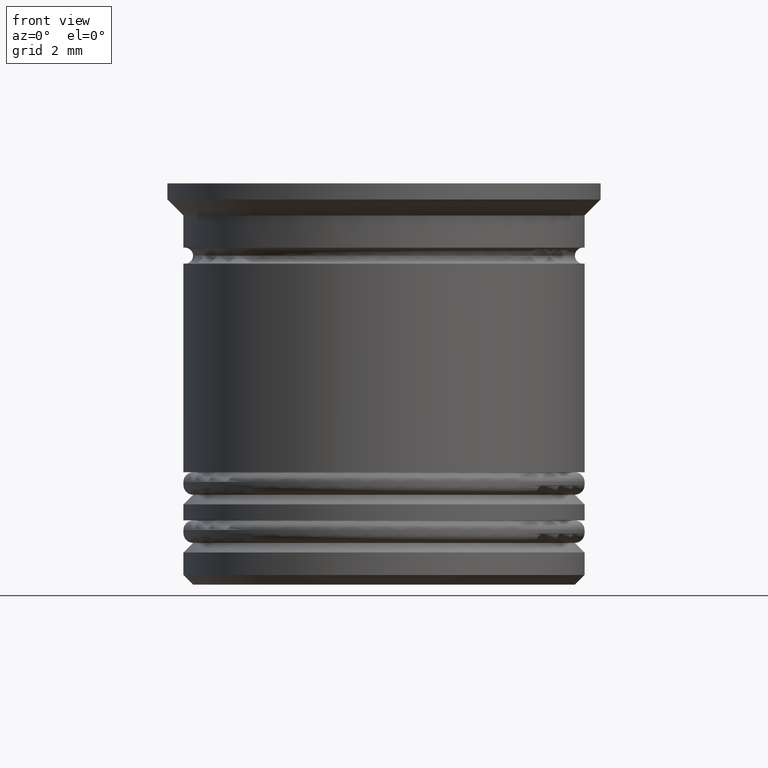
[diagram: clean part render]
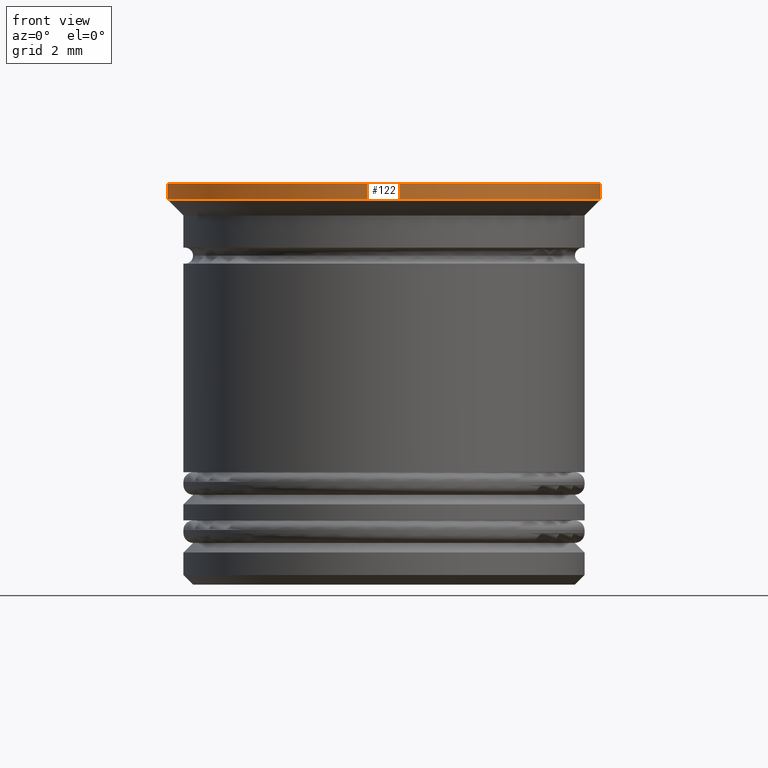
[diagram: same view with one face highlighted and labeled with its STEP entity id]
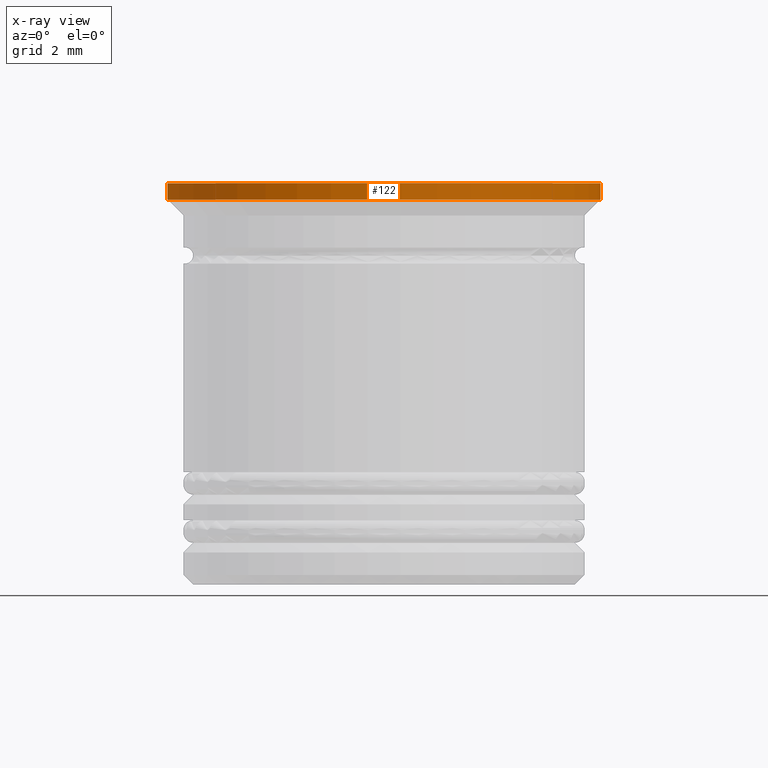
[diagram: x-ray of the same camera — body ghosted, the highlighted face saturated]
A machine part, front view. The second image highlights one B-rep face of the part: STEP entity #122.
The next image is the same camera in x-ray: the body ghosted, the highlighted face saturated — about 0% of this face is hidden behind the body in this view.
In plain terms, the highlighted cylindrical surface (partial cylindrical patch) has radius 6.75 mm, axis along (-0, -0, 1).
Its self-contained STEP definition (entity closure, byte-faithful):
#61 = DIRECTION ( 'NONE',  ( 1.000000000000000000, 0.000000000000000000, 0.000000000000000000 ) ) ;
#67 = DIRECTION ( 'NONE',  ( -0.000000000000000000, -0.000000000000000000, 1.000000000000000000 ) ) ;
#73 = DIRECTION ( 'NONE',  ( 1.000000000000000000, 0.000000000000000000, 0.000000000000000000 ) ) ;
#121 = CARTESIAN_POINT ( 'NONE',  ( -6.750000000000000000, 8.266365894244634333E-16, 0.000000000000000000 ) ) ;
#122 = ADVANCED_FACE ( 'NONE', ( #1690 ), #342, .T. ) ;
#242 = CARTESIAN_POINT ( 'NONE',  ( 6.750000000000000000, 0.000000000000000000, 0.000000000000000000 ) ) ;
#249 = LINE ( 'NONE', #121, #1379 ) ;
#307 = CARTESIAN_POINT ( 'NONE',  ( -6.750000000000000000, 8.266365894244634333E-16, -0.4999999999999965583 ) ) ;
#332 = VERTEX_POINT ( 'NONE', #1592 ) ;
#342 = CYLINDRICAL_SURFACE ( 'NONE', #862, 6.750000000000000000 ) ;
#347 = CARTESIAN_POINT ( 'NONE',  ( -6.750000000000000000, 8.266365894244634333E-16, 0.000000000000000000 ) ) ;
#402 = DIRECTION ( 'NONE',  ( -0.000000000000000000, -0.000000000000000000, 1.000000000000000000 ) ) ;
#467 = ORIENTED_EDGE ( 'NONE', *, *, #846, .T. ) ;
#546 = CARTESIAN_POINT ( 'NONE',  ( 0.000000000000000000, 0.000000000000000000, -0.4999999999999965583 ) ) ;
#558 = DIRECTION ( 'NONE',  ( -1.000000000000000000, 0.000000000000000000, 0.000000000000000000 ) ) ;
#626 = CARTESIAN_POINT ( 'NONE',  ( 0.000000000000000000, 0.000000000000000000, 0.000000000000000000 ) ) ;
#769 = VECTOR ( 'NONE', #402, 1000.000000000000000 ) ;
#784 = CARTESIAN_POINT ( 'NONE',  ( 0.000000000000000000, 0.000000000000000000, 0.000000000000000000 ) ) ;
#797 = EDGE_CURVE ( 'NONE', #1712, #1752, #894, .T. ) ;
#846 = EDGE_CURVE ( 'NONE', #332, #1752, #1071, .T. ) ;
#848 = EDGE_CURVE ( 'NONE', #1154, #332, #955, .T. ) ;
#862 = AXIS2_PLACEMENT_3D ( 'NONE', #626, #1092, #61 ) ;
#894 = CIRCLE ( 'NONE', #1079, 6.750000000000000000 ) ;
#955 = CIRCLE ( 'NONE', #1019, 6.750000000000000000 ) ;
#958 = DIRECTION ( 'NONE',  ( -0.000000000000000000, -0.000000000000000000, 1.000000000000000000 ) ) ;
#1019 = AXIS2_PLACEMENT_3D ( 'NONE', #546, #1929, #558 ) ;
#1071 = LINE ( 'NONE', #242, #769 ) ;
#1079 = AXIS2_PLACEMENT_3D ( 'NONE', #784, #958, #73 ) ;
#1092 = DIRECTION ( 'NONE',  ( -0.000000000000000000, -0.000000000000000000, 1.000000000000000000 ) ) ;
#1154 = VERTEX_POINT ( 'NONE', #307 ) ;
#1325 = ORIENTED_EDGE ( 'NONE', *, *, #797, .F. ) ;
#1379 = VECTOR ( 'NONE', #67, 1000.000000000000000 ) ;
#1459 = CARTESIAN_POINT ( 'NONE',  ( 6.750000000000000000, 0.000000000000000000, 0.000000000000000000 ) ) ;
#1592 = CARTESIAN_POINT ( 'NONE',  ( 6.750000000000000000, 0.000000000000000000, -0.4999999999999965583 ) ) ;
#1690 = FACE_OUTER_BOUND ( 'NONE', #1734, .T. ) ;
#1712 = VERTEX_POINT ( 'NONE', #347 ) ;
#1723 = ORIENTED_EDGE ( 'NONE', *, *, #848, .T. ) ;
#1729 = EDGE_CURVE ( 'NONE', #1154, #1712, #249, .T. ) ;
#1734 = EDGE_LOOP ( 'NONE', ( #1965, #1723, #467, #1325 ) ) ;
#1752 = VERTEX_POINT ( 'NONE', #1459 ) ;
#1929 = DIRECTION ( 'NONE',  ( -0.000000000000000000, -0.000000000000000000, 1.000000000000000000 ) ) ;
#1965 = ORIENTED_EDGE ( 'NONE', *, *, #1729, .F. ) ;